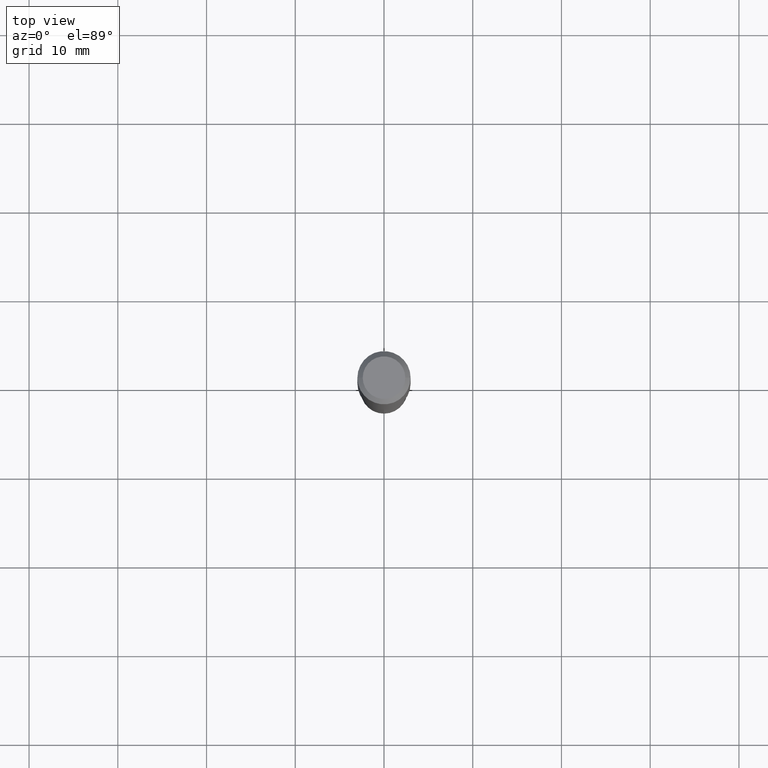
[diagram: clean part render]
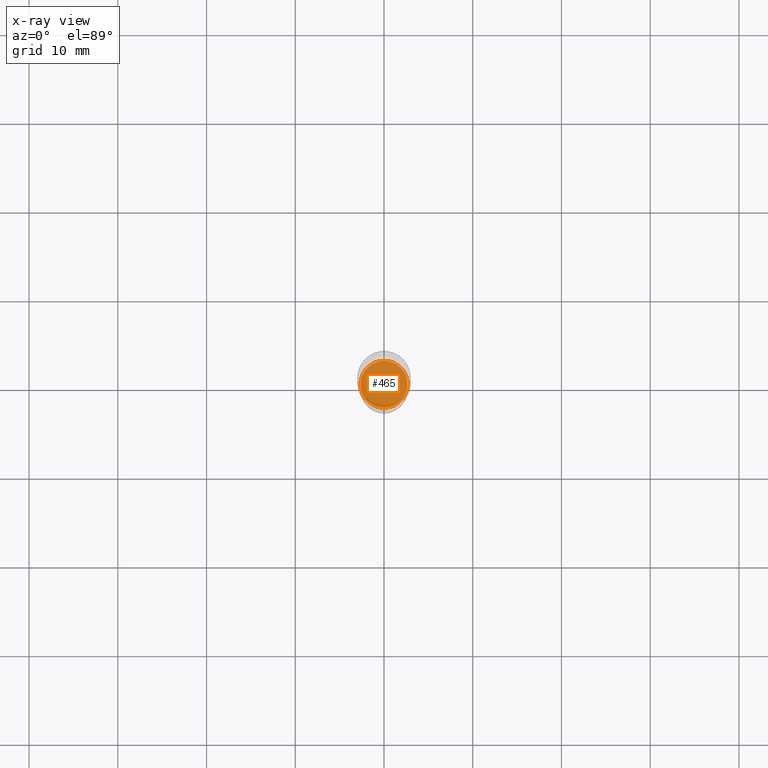
[diagram: x-ray — body ghosted, one internal face saturated and labeled with its STEP entity id]
A machine part, top view, then the same camera in x-ray: the body is ghosted and one INTERNAL B-rep face — a face not visible from any outside direction — is saturated and labeled: STEP entity #465.
In plain terms, the highlighted planar face has unit normal (0, -0, -1).
Its self-contained STEP definition (entity closure, byte-faithful):
#1 = PLANE ( 'NONE',  #293 ) ;
#33 = DIRECTION ( 'NONE',  ( 6.982962677686265922E-15, 1.000000000000000000, -3.491494874161929332E-15 ) ) ;
#50 = AXIS2_PLACEMENT_3D ( 'NONE', #413, #347, #83 ) ;
#64 = CARTESIAN_POINT ( 'NONE',  ( 7.414513447657423334E-16, 0.1043499999999940447, -1.704700000000000326 ) ) ;
#67 = ORIENTED_EDGE ( 'NONE', *, *, #340, .T. ) ;
#72 = DIRECTION ( 'NONE',  ( 2.445459354522546466E-29, -3.491494874161929332E-15, -1.000000000000000000 ) ) ;
#82 = EDGE_LOOP ( 'NONE', ( #67, #392 ) ) ;
#83 = DIRECTION ( 'NONE',  ( -6.982962677686265922E-15, -1.000000000000000000, 2.617966452960482631E-15 ) ) ;
#110 = VERTEX_POINT ( 'NONE', #444 ) ;
#113 = CARTESIAN_POINT ( 'NONE',  ( 4.168790673903801858E-29, -5.951928238325910137E-15, -1.704699999999999882 ) ) ;
#150 = CARTESIAN_POINT ( 'NONE',  ( 4.168790673903801858E-29, -5.951928238325910137E-15, -1.704699999999999882 ) ) ;
#157 = VERTEX_POINT ( 'NONE', #64 ) ;
#266 = CIRCLE ( 'NONE', #50, 0.1043499999999999844 ) ;
#293 = AXIS2_PLACEMENT_3D ( 'NONE', #150, #72, #33 ) ;
#301 = DIRECTION ( 'NONE',  ( -2.445459354522547026E-29, 3.491494874161929332E-15, 1.000000000000000000 ) ) ;
#314 = CIRCLE ( 'NONE', #389, 0.1043499999999999844 ) ;
#340 = EDGE_CURVE ( 'NONE', #110, #157, #266, .T. ) ;
#347 = DIRECTION ( 'NONE',  ( -2.445459354522547026E-29, 3.491494874161929332E-15, 1.000000000000000000 ) ) ;
#372 = FACE_OUTER_BOUND ( 'NONE', #82, .T. ) ;
#380 = DIRECTION ( 'NONE',  ( -6.982962677686265922E-15, -1.000000000000000000, 2.617966452960482631E-15 ) ) ;
#389 = AXIS2_PLACEMENT_3D ( 'NONE', #113, #301, #380 ) ;
#392 = ORIENTED_EDGE ( 'NONE', *, *, #436, .T. ) ;
#413 = CARTESIAN_POINT ( 'NONE',  ( 4.168790673903801858E-29, -5.951928238325910137E-15, -1.704699999999999882 ) ) ;
#436 = EDGE_CURVE ( 'NONE', #157, #110, #314, .T. ) ;
#444 = CARTESIAN_POINT ( 'NONE',  ( -7.286721554165200096E-16, -0.1043500000000059519, -1.704699999999999660 ) ) ;
#465 = ADVANCED_FACE ( 'NONE', ( #372 ), #1, .F. ) ;